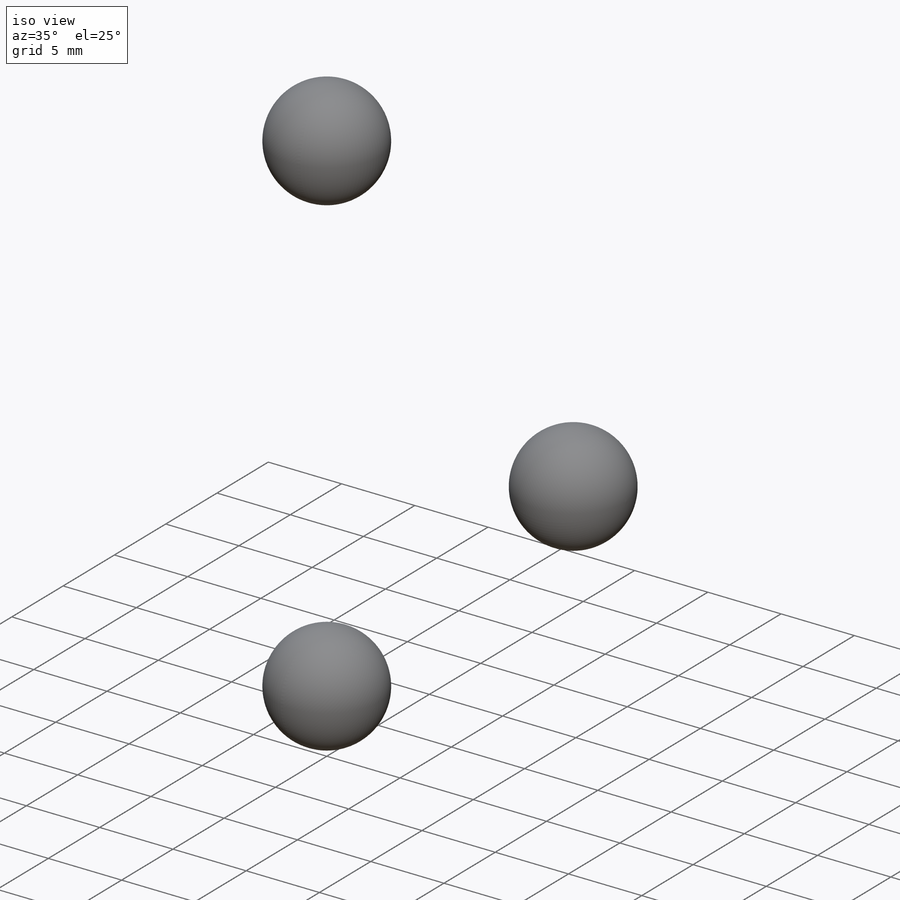
[diagram: iso view]
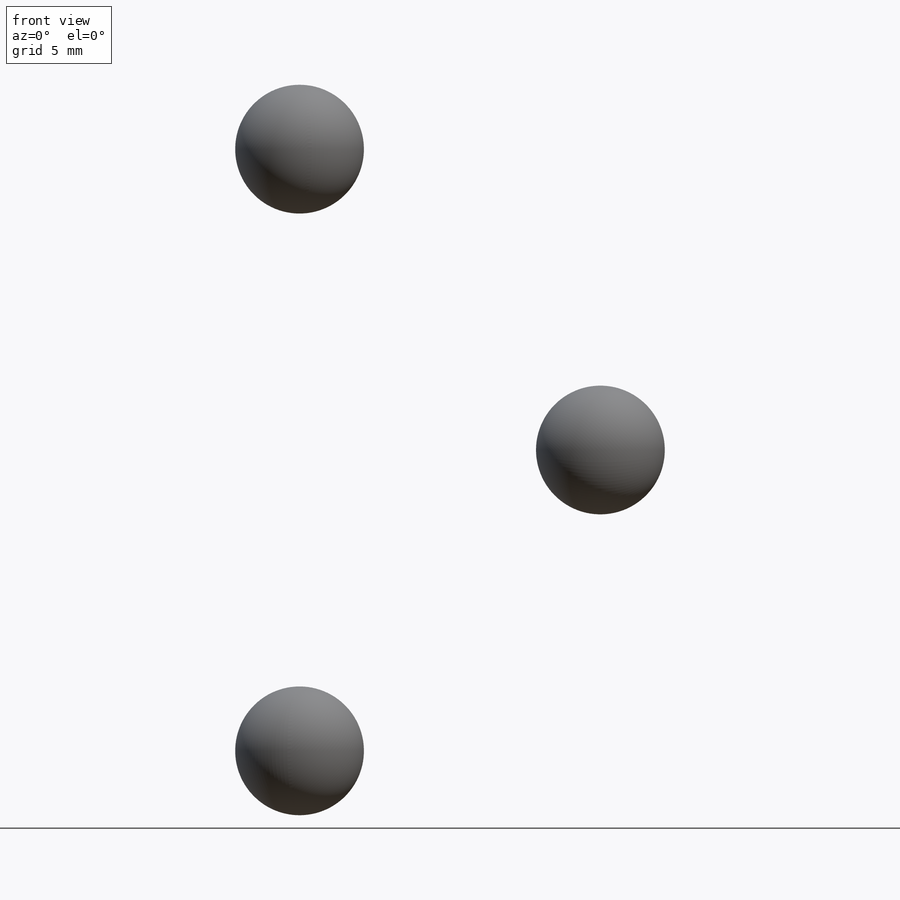
[diagram: front view]
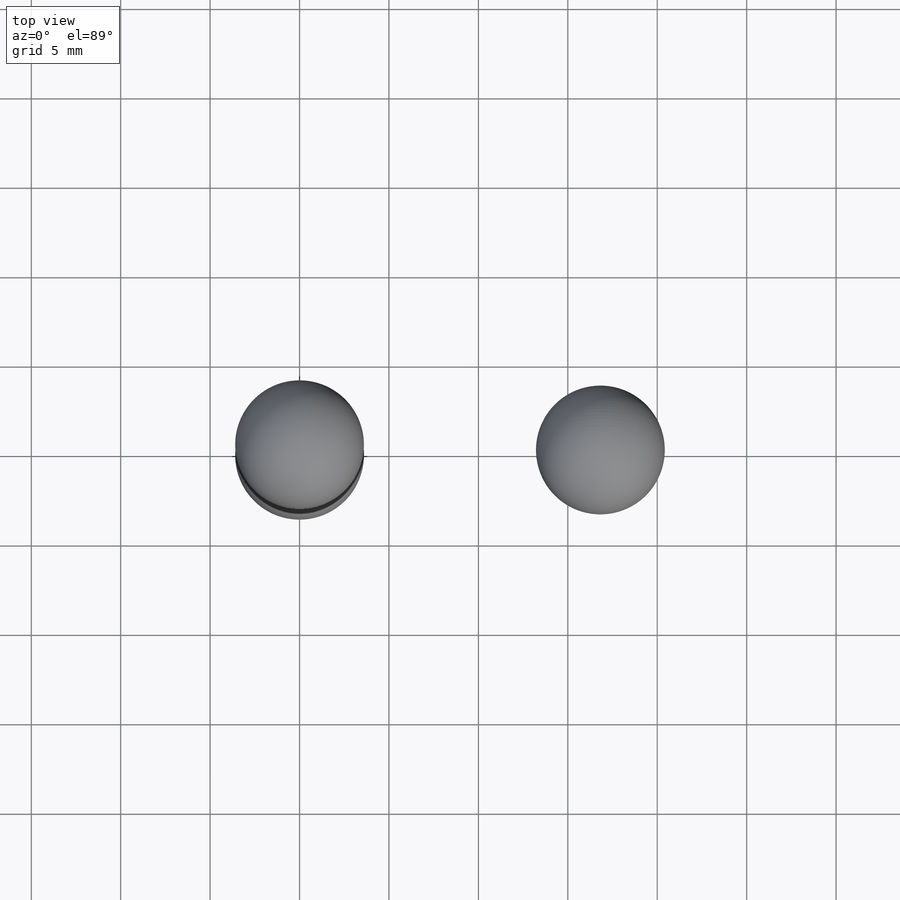
[diagram: top view]
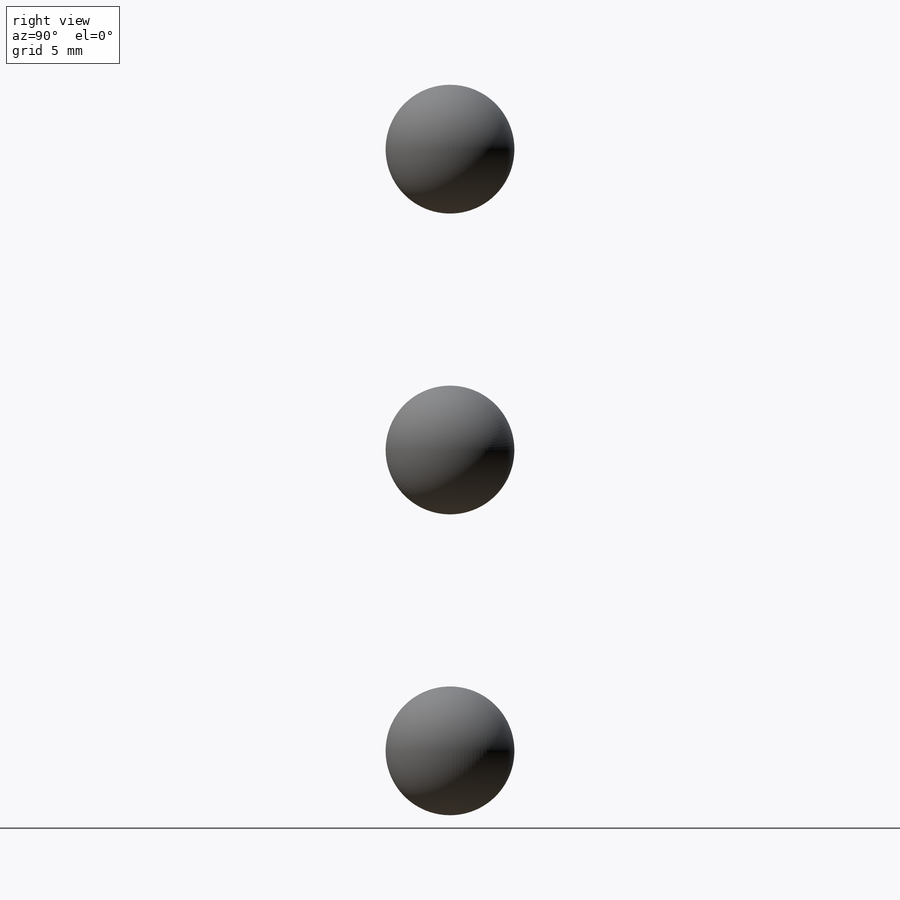
[diagram: right view]
SOLIDWORKS PART (.sldprt)
format: sldprt  version: not decoded by parser v0  size: 987,648 bytes
history: native  units: mm
features: sketch x8, chamfer x4, revolve x3, pattern_circular x3, extrude x2, cut_extrude x2, fillet x2, material x1, cut_revolve x1 (+14 scaffold rows collapsed)
feature tree (40):
  scaffold x14  (default folders/planes/origin — collapsed)
  material  "Material <not specified>"
  sketch  "Sketch1"  dims[c1.D4=7.2009mm c1.Material Thickness t=2.032mm c1.Shaft Dia=12.7mm c1.Bearing OD K=44.5008mm c1.Bearing Length Bi=~21.99894mm c1.Bearing Back n=~5.99948mm c1.Bearing Thickness M=~7.14502mm c1.D1=~0.00508mm c1.OD b=58.7502mm c1.D2=0.3175mm c1.D3=9.6012mm c1.D5=~1.080135mm c1.D6=0.0762mm c1.D7=0.254mm c1.D8=22.2504mm c2.Bearing OD K=22.2504mm c3.Bearing OD K=28.6004mm c3.D8=~4.763347mm c3.D9=0.127mm c3.D10=~4.392319mm c3.D11=~2.635391mm c3.D12=~0.878464mm c3.Bearing Dia=43.688mm]
  revolve  "Revolve1"  Angle=360deg
  chamfer  "Chamfer3"  Distance=0.254mm Angle=45deg
  chamfer  "Chamfer4"  Distance=0.254mm Angle=45deg
  sketch  "Sketch3"
  revolve  "Revolve3"  Angle=360deg
  pattern_circular  "CirPattern1"  Count=4 Angle=360deg
  sketch  "Sketch4"  dims[c1.D1=~13.642311mm c1.D2=~7.117403mm c1.Overall Length a=80.9752mm c2.D2=90.5002mm c2.D3=~10.32002mm c2.Square length s=7.112mm c2.Hole Distance e=63.5mm]
  extrude  "Extrude1"  [1 undecoded]
  sketch  "Sketch5"
  extrude  "Extrude2"  [1 undecoded]
  sketch  "Sketch6"
  cut_extrude  "Cut-Extrude1"  [1 undecoded]
  fillet  "Fillet1"  Radius=0.889mm
  fillet  "Fillet2"  Radius=0.889mm
  chamfer  "Chamfer1"  Distance=0.7112mm Angle=45deg
  sketch  "Sketch7"  dims[SD=4.826mm D1=0.762mm]
  cut_revolve  "Cut-Revolve2"  Angle=360deg
  sketch  "Sketch8"  dims[c1.D1=0.0254mm c1.D2=~0.715886mm c2.D2=~214.383413deg c3.D2=~1.267665mm c4.D2=70.0deg c4.D3=4.7752mm c4.D4=~7.96433mm]
  revolve  "Revolve4"  Angle=360deg
  chamfer  "Chamfer2"  Distance=0.1778mm Angle=45deg
  sketch  "Sketch9"  dims[D1=2.3876mm]
  cut_extrude  "Cut-Extrude2"  Depth=1.592866mm
  pattern_circular  "CirPattern2"  Count=2 Angle=120deg
  pattern_circular  "CirPattern3"  Count=2 Angle=120deg
decode coverage: 19 of 25 modeling features carry decoded parameters
note: ~ marks probable driven/reference dimensions
note: 3 parameter values undecoded
summary: no parameter record found for 3 features
note: suppression state not decoded; provenance and decode notes live in map.json
